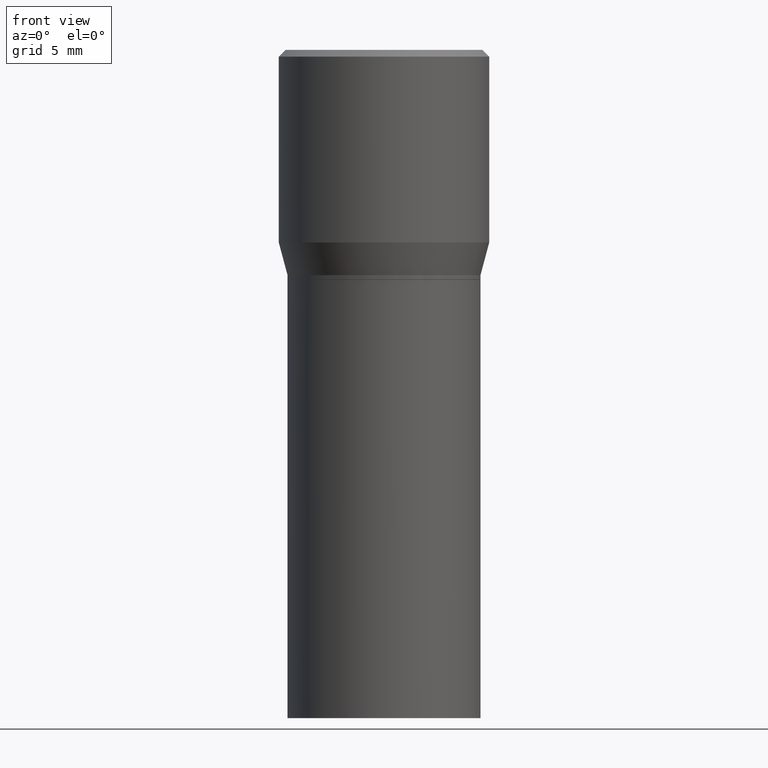
[diagram: clean part render]
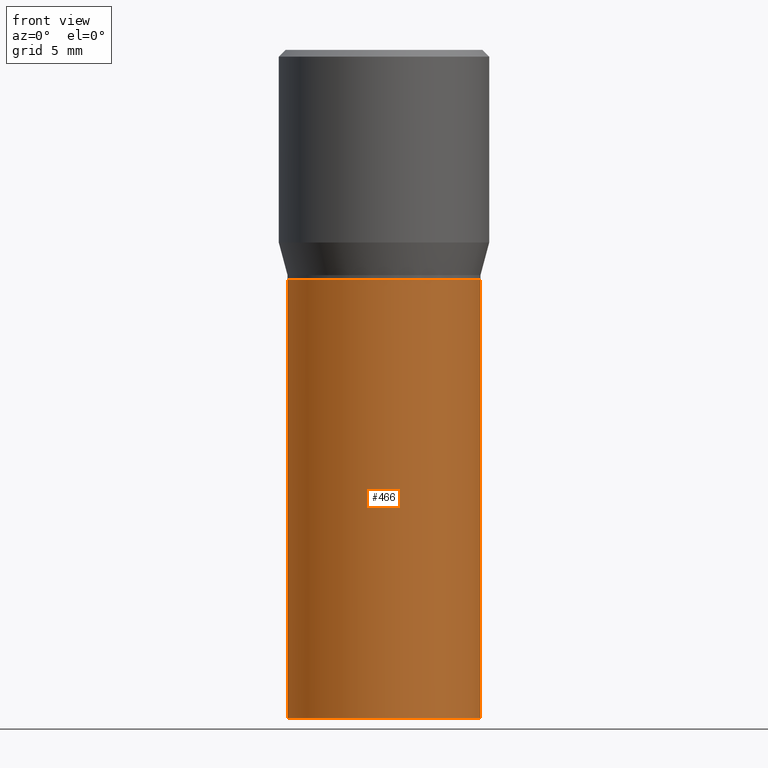
[diagram: same view with one face highlighted and labeled with its STEP entity id]
A machine part, front view. The second image highlights one B-rep face of the part: STEP entity #466.
In plain terms, the highlighted cylindrical surface (partial cylindrical patch) has radius 5.5004 mm, axis along (-0, 0, 1).
Its self-contained STEP definition (entity closure, byte-faithful):
#13 = VERTEX_POINT ( 'NONE', #310 ) ;
#17 = CARTESIAN_POINT ( 'NONE',  ( 3.668203209277704895E-29, -5.237222008264718177E-15, -1.500000000000000222 ) ) ;
#64 = AXIS2_PLACEMENT_3D ( 'NONE', #17, #343, #340 ) ;
#70 = EDGE_CURVE ( 'NONE', #13, #363, #445, .T. ) ;
#92 = VERTEX_POINT ( 'NONE', #142 ) ;
#100 = CARTESIAN_POINT ( 'NONE',  ( 1.261128263349675426E-29, -1.800556926441410962E-15, -0.5157000000000001583 ) ) ;
#117 = ORIENTED_EDGE ( 'NONE', *, *, #70, .F. ) ;
#125 = ORIENTED_EDGE ( 'NONE', *, *, #141, .T. ) ;
#128 = DIRECTION ( 'NONE',  ( -2.445468806185136877E-29, 3.491481338843145188E-15, 1.000000000000000000 ) ) ;
#134 = DIRECTION ( 'NONE',  ( 1.000000000000000000, -6.982962677686265133E-15, 0.000000000000000000 ) ) ;
#141 = EDGE_CURVE ( 'NONE', #92, #363, #411, .T. ) ;
#142 = CARTESIAN_POINT ( 'NONE',  ( 0.2165500000000000203, -6.749382576117678999E-15, -1.500000000000000222 ) ) ;
#146 = CARTESIAN_POINT ( 'NONE',  ( 0.000000000000000000, 0.000000000000000000, 0.000000000000000000 ) ) ;
#174 = DIRECTION ( 'NONE',  ( -2.445468806185136597E-29, 3.491481338843145583E-15, 1.000000000000000000 ) ) ;
#182 = FACE_OUTER_BOUND ( 'NONE', #427, .T. ) ;
#187 = VERTEX_POINT ( 'NONE', #357 ) ;
#194 = CIRCLE ( 'NONE', #64, 0.2165500000000000203 ) ;
#203 = CARTESIAN_POINT ( 'NONE',  ( 0.2165500000000000203, -1.512160567852961217E-15, 1.055936080798610036E-29 ) ) ;
#206 = CARTESIAN_POINT ( 'NONE',  ( 0.2165500000000000203, -3.312717494294371784E-15, -0.5157000000000001583 ) ) ;
#209 = ORIENTED_EDGE ( 'NONE', *, *, #241, .T. ) ;
#216 = VECTOR ( 'NONE', #128, 39.37007874015748143 ) ;
#229 = VECTOR ( 'NONE', #267, 39.37007874015748143 ) ;
#231 = AXIS2_PLACEMENT_3D ( 'NONE', #146, #244, #316 ) ;
#241 = EDGE_CURVE ( 'NONE', #187, #92, #194, .T. ) ;
#244 = DIRECTION ( 'NONE',  ( -2.445468806185136597E-29, 3.491481338843145583E-15, 1.000000000000000000 ) ) ;
#267 = DIRECTION ( 'NONE',  ( -2.445468806185136877E-29, 3.491481338843145188E-15, 1.000000000000000000 ) ) ;
#296 = EDGE_CURVE ( 'NONE', #187, #13, #303, .T. ) ;
#303 = LINE ( 'NONE', #444, #216 ) ;
#310 = CARTESIAN_POINT ( 'NONE',  ( -0.2165500000000000203, -1.980209173064567670E-15, -0.5157000000000001583 ) ) ;
#316 = DIRECTION ( 'NONE',  ( 1.000000000000000000, -6.982962677686266711E-15, 4.876176775795935793E-29 ) ) ;
#321 = CYLINDRICAL_SURFACE ( 'NONE', #231, 0.2165500000000000203 ) ;
#340 = DIRECTION ( 'NONE',  ( 1.000000000000000000, -6.982962677686264344E-15, 0.000000000000000000 ) ) ;
#343 = DIRECTION ( 'NONE',  ( -2.445468806185136597E-29, 3.491481338843145583E-15, 1.000000000000000000 ) ) ;
#357 = CARTESIAN_POINT ( 'NONE',  ( -0.2165500000000000203, -1.980209173064567670E-15, -1.500000000000000222 ) ) ;
#363 = VERTEX_POINT ( 'NONE', #206 ) ;
#371 = ORIENTED_EDGE ( 'NONE', *, *, #296, .F. ) ;
#411 = LINE ( 'NONE', #203, #229 ) ;
#412 = AXIS2_PLACEMENT_3D ( 'NONE', #100, #174, #134 ) ;
#427 = EDGE_LOOP ( 'NONE', ( #371, #209, #125, #117 ) ) ;
#444 = CARTESIAN_POINT ( 'NONE',  ( -0.2165500000000000203, 1.538680294288497096E-15, -1.065195393794699923E-29 ) ) ;
#445 = CIRCLE ( 'NONE', #412, 0.2165500000000000203 ) ;
#466 = ADVANCED_FACE ( 'NONE', ( #182 ), #321, .T. ) ;